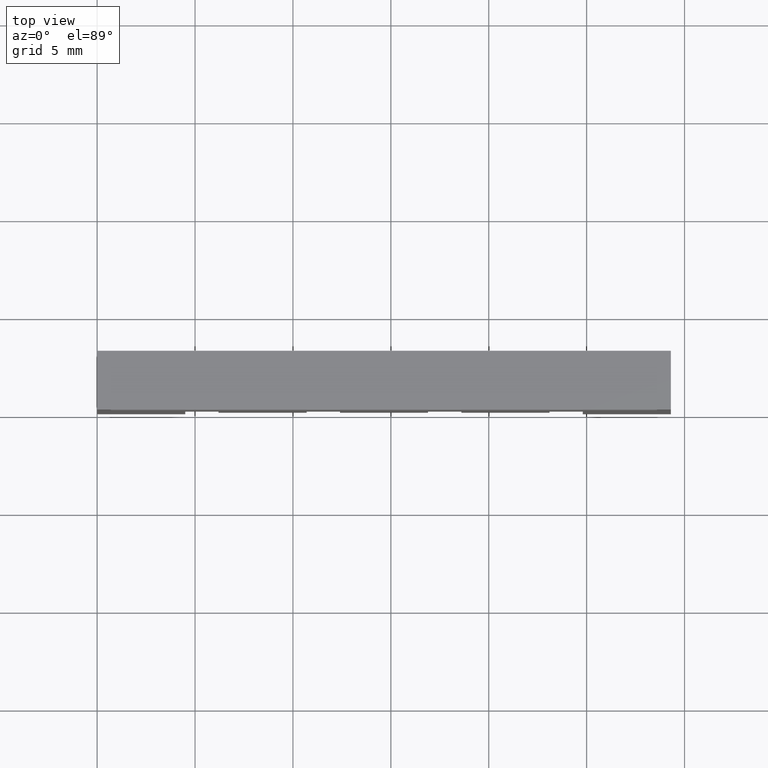
[diagram: clean part render]
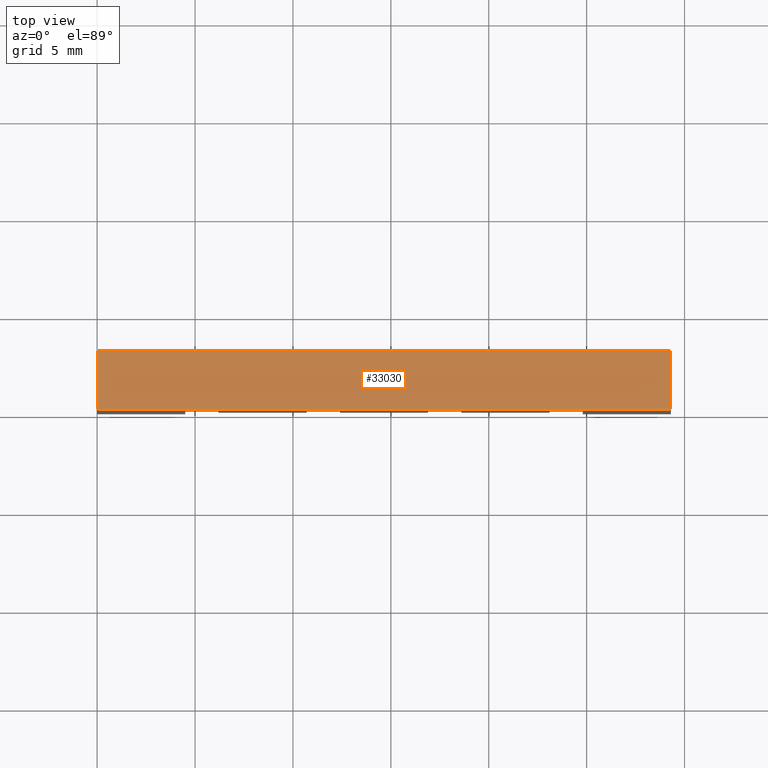
[diagram: same view with one face highlighted and labeled with its STEP entity id]
A machine part, top view. The second image highlights one B-rep face of the part: STEP entity #33030.
In plain terms, the highlighted planar face has unit normal (0, -0, 1).
Its self-contained STEP definition (entity closure, byte-faithful):
#5620=CARTESIAN_POINT('',(5.60716722168535,-9.17500000000389,
31.4099999999988));
#5630=VERTEX_POINT('',#5620);
#6790=CARTESIAN_POINT('',(5.60716722168535,-9.17500000000389,
60.7099999999949));
#6800=VERTEX_POINT('',#6790);
#6830=CARTESIAN_POINT('',(5.60716722168535,-9.17500000000389,
47.0249839999962));
#6840=DIRECTION('',(2.13821176807375E-50,0.,1.));
#6850=VECTOR('',#6840,1.);
#6860=LINE('',#6830,#6850);
#6870=EDGE_CURVE('',#5630,#6800,#6860,.T.);
#11920=CARTESIAN_POINT('',(2.60716722168534,-9.17500000000389,
60.7099999999949));
#11930=VERTEX_POINT('',#11920);
#11960=CARTESIAN_POINT('',(5.60716722168533,-9.17500000000389,
60.7099999999949));
#11970=DIRECTION('',(1.,0.,2.13821176807375E-50));
#11980=VECTOR('',#11970,1.);
#11990=LINE('',#11960,#11980);
#12000=EDGE_CURVE('',#11930,#6800,#11990,.T.);
#19820=CARTESIAN_POINT('',(2.60716722168534,-9.17500000000389,
31.4099999999988));
#19830=VERTEX_POINT('',#19820);
#19860=CARTESIAN_POINT('',(2.60716722168534,-9.17500000000389,40.824984)
);
#19870=DIRECTION('',(-2.13821176807375E-50,0.,-1.));
#19880=VECTOR('',#19870,1.);
#19890=LINE('',#19860,#19880);
#19900=EDGE_CURVE('',#11930,#19830,#19890,.T.);
#32730=CARTESIAN_POINT('',(5.60716722168533,-9.17500000000389,
31.4099999999988));
#32740=DIRECTION('',(-1.,0.,-2.13821176807375E-50));
#32750=VECTOR('',#32740,1.);
#32760=LINE('',#32730,#32750);
#32770=EDGE_CURVE('',#5630,#19830,#32760,.T.);
#32920=CARTESIAN_POINT('',(2.60716722168534,-9.17500000000389,
1.10999999999878));
#32930=DIRECTION('',(0.,1.,0.));
#32940=DIRECTION('',(2.13821176807375E-50,0.,1.));
#32950=AXIS2_PLACEMENT_3D('',#32920,#32930,#32940);
#32960=PLANE('',#32950);
#32970=ORIENTED_EDGE('',*,*,#32770,.T.);
#32980=ORIENTED_EDGE('',*,*,#6870,.F.);
#32990=ORIENTED_EDGE('',*,*,#12000,.T.);
#33000=ORIENTED_EDGE('',*,*,#19900,.F.);
#33010=EDGE_LOOP('',(#33000,#32990,#32980,#32970));
#33020=FACE_OUTER_BOUND('',#33010,.T.);
#33030=ADVANCED_FACE('',(#33020),#32960,.T.);